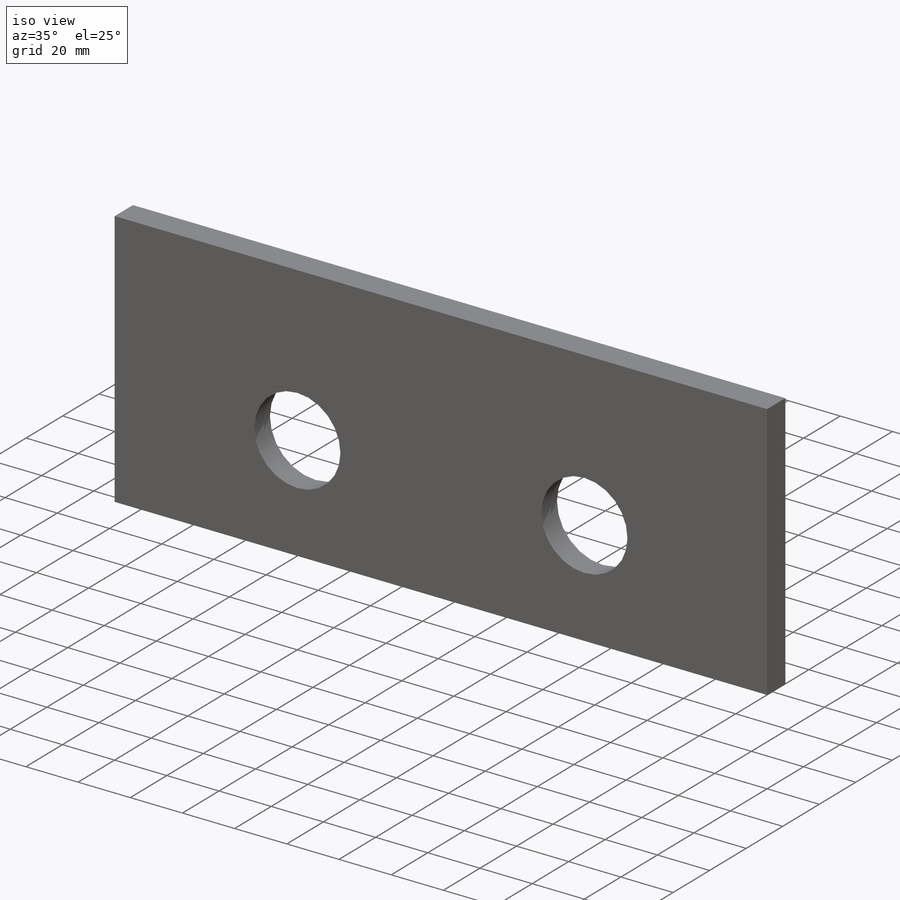
[diagram: iso view]
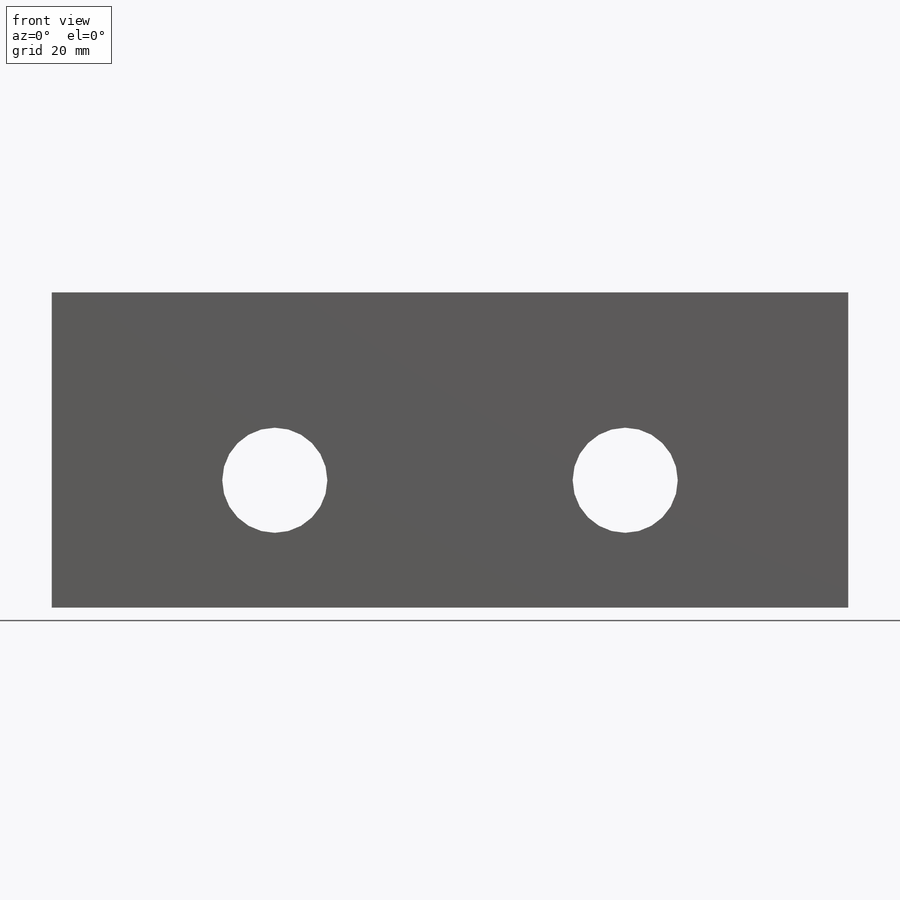
[diagram: front view]
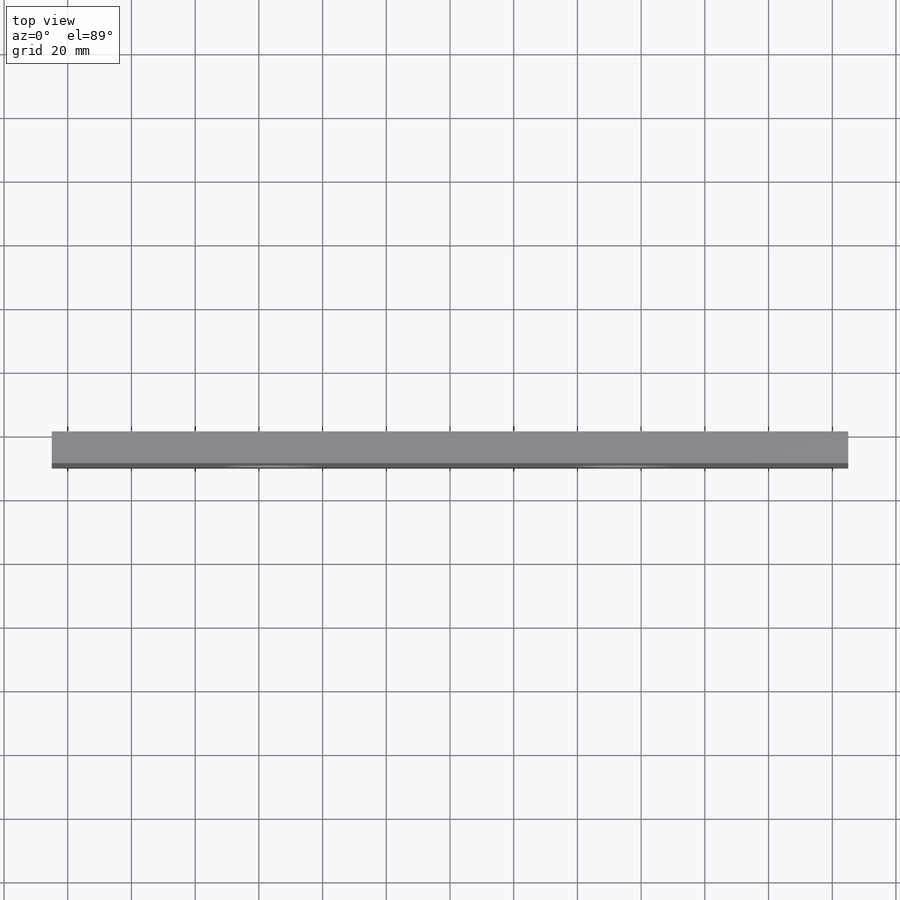
[diagram: top view]
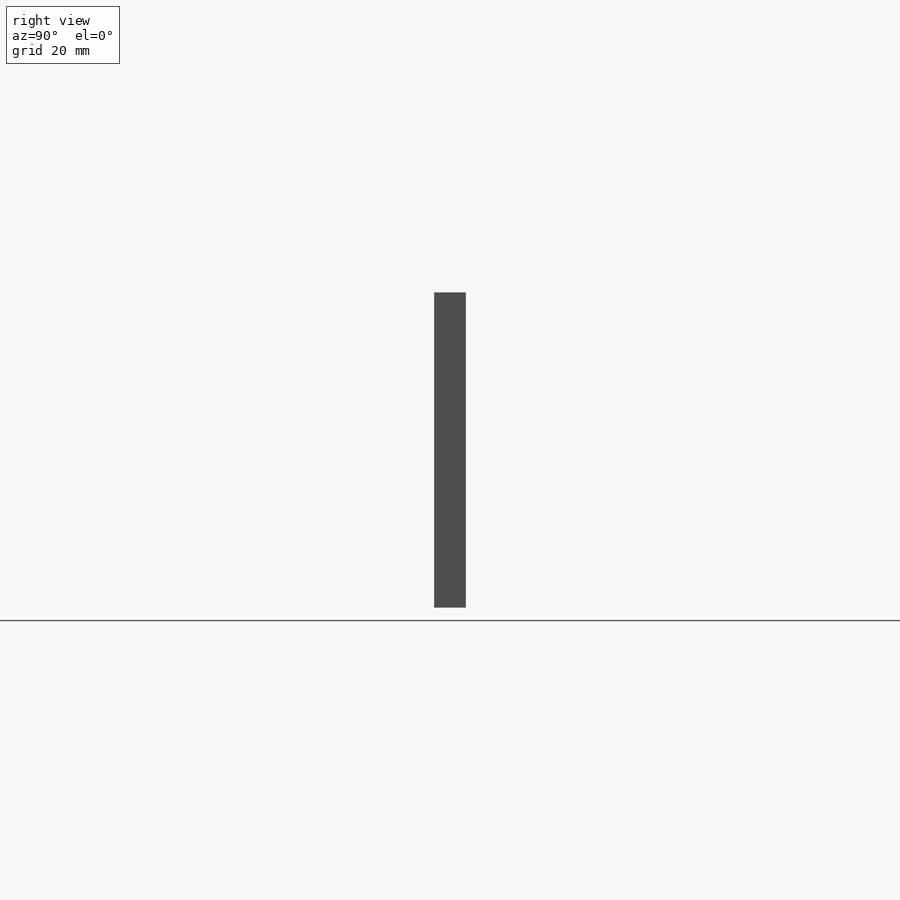
[diagram: right view]
SOLIDWORKS PART (.sldprt)
format: sldprt  version: not decoded by parser v0  size: 187,904 bytes
history: native  units: mm
features: sketch x3, material x1, extrude x1, hole x1, mirror x1 (+12 scaffold rows collapsed)
feature tree (19):
  scaffold x12  (default folders/planes/origin — collapsed)
  material  "Material <not specified>"
  sketch  "Sketch1"  dims[D1=99.0mm D2=250.0mm]
  extrude  "Boss-Extrude1"  Depth=10mm
  hole  "CBORE for M5 Hex Head Bolt1"  Diameter=33mm Depth=10mm
  sketch  "Sketch3"  dims[D1=55.0mm D2=40.0mm]
  sketch  "Sketch2"  dims[hole-wizard template sketch: 41 standard entries collapsed; hole parameters kept: c12.Thru Hole Dia.=33.0mm c12.Thru Hole Depth=10.0mm c12.C'Bore Dia.=35.0mm c12.C'Bore Depth=5.0mm]
  mirror  "Mirror1"
decode coverage: 5 of 6 modeling features carry decoded parameters
note: ~ marks probable driven/reference dimensions
note: suppression state not decoded; provenance and decode notes live in map.json
